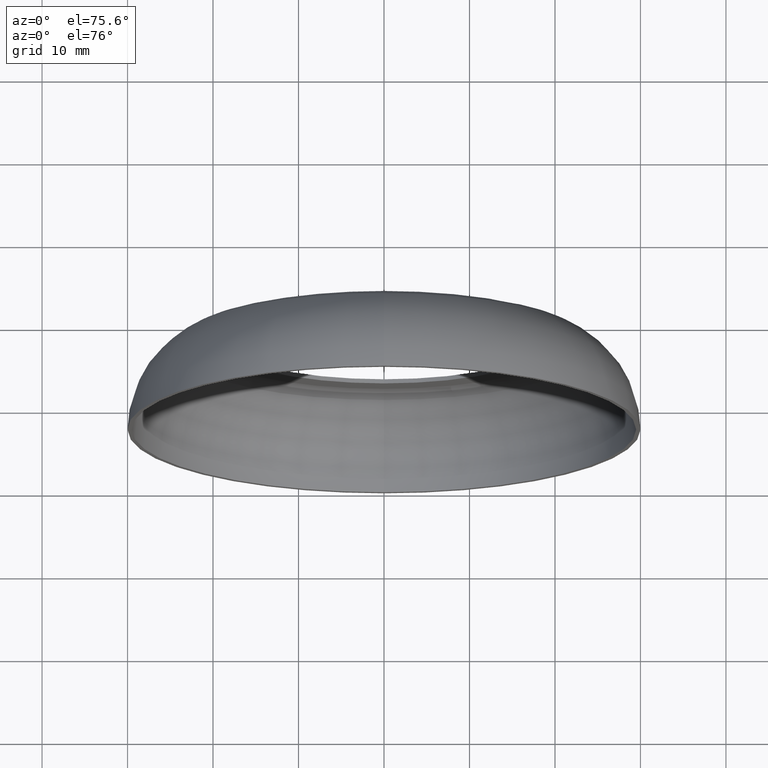
[diagram: clean part render]
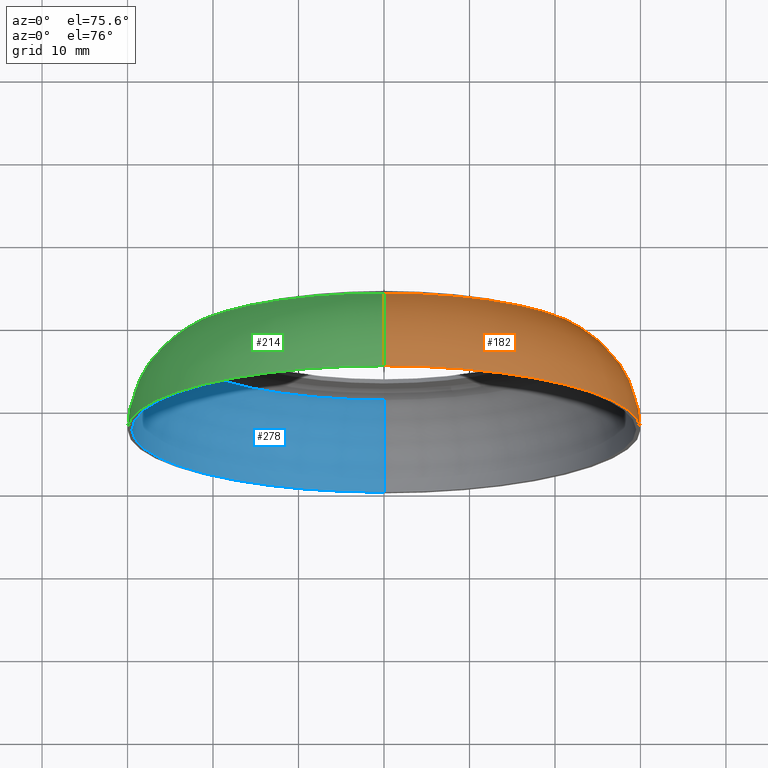
[diagram: same view with three faces highlighted in distinct colors, each labeled with its STEP entity id]
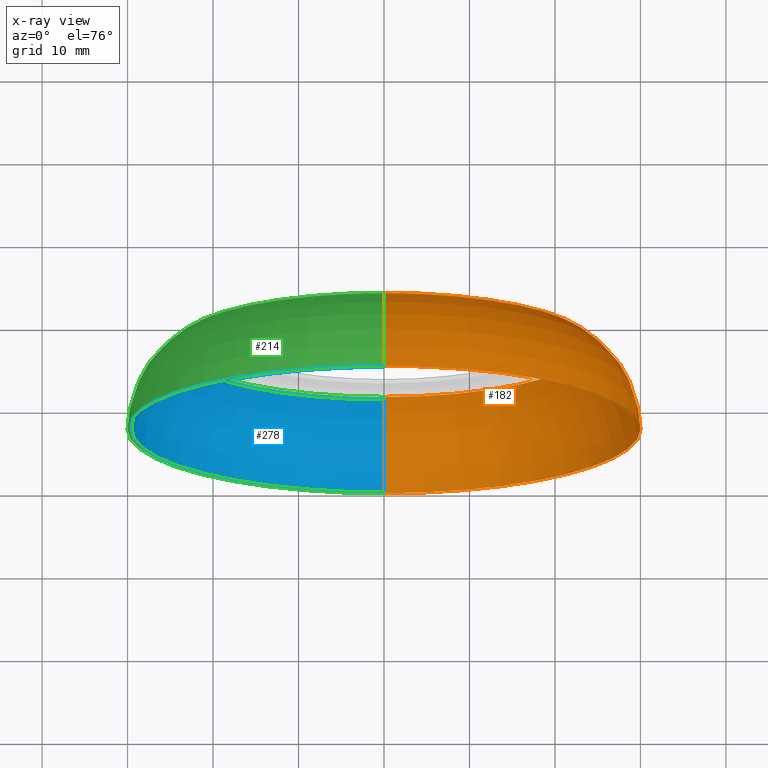
[diagram: x-ray of the same camera — body ghosted, the three highlighted faces saturated]
A machine part, auxiliary view with three faces highlighted in distinct colors.
The next image is the same camera in x-ray (body ghosted, the three faces saturated) — at least one of them is partly hidden behind the body in this view.
Their STEP definitions:

[orange] entity #182 — the highlighted toroidal blend (fillet) surface has major radius 17.8571 mm and minor (blend) radius 12.1429 mm.
#6 = CIRCLE ( 'NONE', #294, 12.14285714285714200 ) ;
#11 = CARTESIAN_POINT ( 'NONE',  ( 0.0000000000000000000, 0.0000000000000000000, -17.85714285714285800 ) ) ;
#31 = VERTEX_POINT ( 'NONE', #147 ) ;
#51 = DIRECTION ( 'NONE',  ( 1.000000000000000000, 0.0000000000000000000, -1.224646799147353200E-016 ) ) ;
#61 = CARTESIAN_POINT ( 'NONE',  ( 0.0000000000000000000, 10.19999999999999800, -24.44569198360740700 ) ) ;
#63 = DIRECTION ( 'NONE',  ( -0.0000000000000000000, -1.000000000000000000, -0.0000000000000000000 ) ) ;
#75 = VERTEX_POINT ( 'NONE', #61 ) ;
#108 = DIRECTION ( 'NONE',  ( -1.224646799147353200E-016, 0.0000000000000000000, -1.000000000000000000 ) ) ;
#110 = VERTEX_POINT ( 'NONE', #169 ) ;
#123 = CIRCLE ( 'NONE', #150, 30.00000000000000000 ) ;
#146 = ORIENTED_EDGE ( 'NONE', *, *, #385, .T. ) ;
#147 = CARTESIAN_POINT ( 'NONE',  ( 0.0000000000000000000, 0.0000000000000000000, -30.00000000000000000 ) ) ;
#150 = AXIS2_PLACEMENT_3D ( 'NONE', #235, #355, #207 ) ;
#161 = ORIENTED_EDGE ( 'NONE', *, *, #300, .F. ) ;
#169 = CARTESIAN_POINT ( 'NONE',  ( 3.673940397442059200E-015, 0.0000000000000000000, 30.00000000000000000 ) ) ;
#170 = DIRECTION ( 'NONE',  ( 0.0000000000000000000, 0.0000000000000000000, 1.000000000000000000 ) ) ;
#172 = EDGE_LOOP ( 'NONE', ( #361, #146, #399, #161 ) ) ;
#182 = ADVANCED_FACE ( 'NONE', ( #335 ), #341, .T. ) ;
#184 = CARTESIAN_POINT ( 'NONE',  ( 0.0000000000000000000, 0.0000000000000000000, 0.0000000000000000000 ) ) ;
#188 = CIRCLE ( 'NONE', #333, 24.44569198360740700 ) ;
#195 = CIRCLE ( 'NONE', #375, 12.14285714285714200 ) ;
#198 = EDGE_CURVE ( 'NONE', #75, #315, #188, .T. ) ;
#207 = DIRECTION ( 'NONE',  ( 0.0000000000000000000, 0.0000000000000000000, -1.000000000000000000 ) ) ;
#235 = CARTESIAN_POINT ( 'NONE',  ( 0.0000000000000000000, 0.0000000000000000000, 0.0000000000000000000 ) ) ;
#246 = AXIS2_PLACEMENT_3D ( 'NONE', #184, #63, #316 ) ;
#258 = DIRECTION ( 'NONE',  ( -1.000000000000000000, 0.0000000000000000000, 0.0000000000000000000 ) ) ;
#283 = CARTESIAN_POINT ( 'NONE',  ( 0.0000000000000000000, 10.19999999999999800, 0.0000000000000000000 ) ) ;
#294 = AXIS2_PLACEMENT_3D ( 'NONE', #11, #258, #170 ) ;
#300 = EDGE_CURVE ( 'NONE', #75, #31, #6, .T. ) ;
#305 = EDGE_CURVE ( 'NONE', #31, #110, #123, .T. ) ;
#315 = VERTEX_POINT ( 'NONE', #393 ) ;
#316 = DIRECTION ( 'NONE',  ( 0.0000000000000000000, 0.0000000000000000000, -1.000000000000000000 ) ) ;
#325 = DIRECTION ( 'NONE',  ( -0.0000000000000000000, -1.000000000000000000, -0.0000000000000000000 ) ) ;
#333 = AXIS2_PLACEMENT_3D ( 'NONE', #283, #325, #348 ) ;
#335 = FACE_OUTER_BOUND ( 'NONE', #172, .T. ) ;
#341 = TOROIDAL_SURFACE ( 'NONE', #246, 17.85714285714285800, 12.14285714285714200 ) ;
#348 = DIRECTION ( 'NONE',  ( 0.0000000000000000000, 0.0000000000000000000, -1.000000000000000000 ) ) ;
#351 = CARTESIAN_POINT ( 'NONE',  ( 2.186869284191702100E-015, 0.0000000000000000000, 17.85714285714285800 ) ) ;
#355 = DIRECTION ( 'NONE',  ( -0.0000000000000000000, -1.000000000000000000, -0.0000000000000000000 ) ) ;
#361 = ORIENTED_EDGE ( 'NONE', *, *, #198, .T. ) ;
#375 = AXIS2_PLACEMENT_3D ( 'NONE', #351, #51, #108 ) ;
#385 = EDGE_CURVE ( 'NONE', #315, #110, #195, .T. ) ;
#393 = CARTESIAN_POINT ( 'NONE',  ( 2.993733844066692300E-015, 10.19999999999999800, 24.44569198360740700 ) ) ;
#399 = ORIENTED_EDGE ( 'NONE', *, *, #305, .F. ) ;

[blue] entity #278 — the highlighted toroidal blend (fillet) surface has major radius 17.8571 mm and minor (blend) radius 11.6429 mm.
#18 = CIRCLE ( 'NONE', #26, 29.50000000000000000 ) ;
#26 = AXIS2_PLACEMENT_3D ( 'NONE', #352, #332, #394 ) ;
#42 = DIRECTION ( 'NONE',  ( -0.0000000000000000000, -1.000000000000000000, -0.0000000000000000000 ) ) ;
#43 = CARTESIAN_POINT ( 'NONE',  ( 0.0000000000000000000, 0.0000000000000000000, 0.0000000000000000000 ) ) ;
#48 = EDGE_CURVE ( 'NONE', #120, #199, #216, .T. ) ;
#70 = CARTESIAN_POINT ( 'NONE',  ( 0.0000000000000000000, 9.779999999999997600, 0.0000000000000000000 ) ) ;
#80 = DIRECTION ( 'NONE',  ( -1.224646799147353200E-016, 0.0000000000000000000, -1.000000000000000000 ) ) ;
#84 = TOROIDAL_SURFACE ( 'NONE', #131, 17.85714285714285800, 11.64285714285714200 ) ;
#95 = EDGE_CURVE ( 'NONE', #226, #199, #18, .T. ) ;
#104 = CIRCLE ( 'NONE', #326, 11.64285714285714200 ) ;
#112 = EDGE_LOOP ( 'NONE', ( #356, #306, #208, #292 ) ) ;
#120 = VERTEX_POINT ( 'NONE', #392 ) ;
#131 = AXIS2_PLACEMENT_3D ( 'NONE', #43, #42, #322 ) ;
#133 = VERTEX_POINT ( 'NONE', #236 ) ;
#151 = DIRECTION ( 'NONE',  ( 0.0000000000000000000, 0.0000000000000000000, -1.000000000000000000 ) ) ;
#155 = AXIS2_PLACEMENT_3D ( 'NONE', #370, #317, #374 ) ;
#197 = CARTESIAN_POINT ( 'NONE',  ( 3.612708057484691600E-015, 0.0000000000000000000, 29.50000000000000000 ) ) ;
#199 = VERTEX_POINT ( 'NONE', #384 ) ;
#208 = ORIENTED_EDGE ( 'NONE', *, *, #95, .T. ) ;
#212 = FACE_OUTER_BOUND ( 'NONE', #112, .T. ) ;
#216 = CIRCLE ( 'NONE', #155, 11.64285714285714200 ) ;
#222 = EDGE_CURVE ( 'NONE', #133, #120, #390, .T. ) ;
#226 = VERTEX_POINT ( 'NONE', #197 ) ;
#236 = CARTESIAN_POINT ( 'NONE',  ( 2.960510009248309900E-015, 9.779999999999997600, 24.17439878428239600 ) ) ;
#268 = DIRECTION ( 'NONE',  ( 1.000000000000000000, 0.0000000000000000000, -1.224646799147353200E-016 ) ) ;
#278 = ADVANCED_FACE ( 'NONE', ( #212 ), #84, .F. ) ;
#292 = ORIENTED_EDGE ( 'NONE', *, *, #48, .F. ) ;
#297 = CARTESIAN_POINT ( 'NONE',  ( 2.186869284191702100E-015, 0.0000000000000000000, 17.85714285714285800 ) ) ;
#306 = ORIENTED_EDGE ( 'NONE', *, *, #358, .T. ) ;
#317 = DIRECTION ( 'NONE',  ( -1.000000000000000000, 0.0000000000000000000, 0.0000000000000000000 ) ) ;
#322 = DIRECTION ( 'NONE',  ( 0.0000000000000000000, 0.0000000000000000000, -1.000000000000000000 ) ) ;
#326 = AXIS2_PLACEMENT_3D ( 'NONE', #297, #268, #80 ) ;
#332 = DIRECTION ( 'NONE',  ( -0.0000000000000000000, -1.000000000000000000, -0.0000000000000000000 ) ) ;
#336 = AXIS2_PLACEMENT_3D ( 'NONE', #70, #379, #151 ) ;
#352 = CARTESIAN_POINT ( 'NONE',  ( 0.0000000000000000000, 0.0000000000000000000, 0.0000000000000000000 ) ) ;
#356 = ORIENTED_EDGE ( 'NONE', *, *, #222, .F. ) ;
#358 = EDGE_CURVE ( 'NONE', #133, #226, #104, .T. ) ;
#370 = CARTESIAN_POINT ( 'NONE',  ( 0.0000000000000000000, 0.0000000000000000000, -17.85714285714285800 ) ) ;
#374 = DIRECTION ( 'NONE',  ( 0.0000000000000000000, 0.0000000000000000000, 1.000000000000000000 ) ) ;
#379 = DIRECTION ( 'NONE',  ( -0.0000000000000000000, -1.000000000000000000, -0.0000000000000000000 ) ) ;
#384 = CARTESIAN_POINT ( 'NONE',  ( 0.0000000000000000000, 0.0000000000000000000, -29.50000000000000000 ) ) ;
#390 = CIRCLE ( 'NONE', #336, 24.17439878428239600 ) ;
#392 = CARTESIAN_POINT ( 'NONE',  ( 0.0000000000000000000, 9.779999999999997600, -24.17439878428239600 ) ) ;
#394 = DIRECTION ( 'NONE',  ( 0.0000000000000000000, 0.0000000000000000000, -1.000000000000000000 ) ) ;

[green] entity #214 — the highlighted toroidal blend (fillet) surface has major radius 17.8571 mm and minor (blend) radius 12.1429 mm.
#6 = CIRCLE ( 'NONE', #294, 12.14285714285714200 ) ;
#8 = CIRCLE ( 'NONE', #284, 24.44569198360740700 ) ;
#11 = CARTESIAN_POINT ( 'NONE',  ( 0.0000000000000000000, 0.0000000000000000000, -17.85714285714285800 ) ) ;
#21 = DIRECTION ( 'NONE',  ( 0.0000000000000000000, 0.0000000000000000000, -1.000000000000000000 ) ) ;
#29 = AXIS2_PLACEMENT_3D ( 'NONE', #65, #321, #126 ) ;
#31 = VERTEX_POINT ( 'NONE', #147 ) ;
#51 = DIRECTION ( 'NONE',  ( 1.000000000000000000, 0.0000000000000000000, -1.224646799147353200E-016 ) ) ;
#52 = ORIENTED_EDGE ( 'NONE', *, *, #344, .T. ) ;
#61 = CARTESIAN_POINT ( 'NONE',  ( 0.0000000000000000000, 10.19999999999999800, -24.44569198360740700 ) ) ;
#65 = CARTESIAN_POINT ( 'NONE',  ( 0.0000000000000000000, 0.0000000000000000000, 0.0000000000000000000 ) ) ;
#71 = ORIENTED_EDGE ( 'NONE', *, *, #230, .F. ) ;
#75 = VERTEX_POINT ( 'NONE', #61 ) ;
#105 = CARTESIAN_POINT ( 'NONE',  ( 0.0000000000000000000, 10.19999999999999800, 0.0000000000000000000 ) ) ;
#108 = DIRECTION ( 'NONE',  ( -1.224646799147353200E-016, 0.0000000000000000000, -1.000000000000000000 ) ) ;
#110 = VERTEX_POINT ( 'NONE', #169 ) ;
#114 = CIRCLE ( 'NONE', #29, 30.00000000000000000 ) ;
#126 = DIRECTION ( 'NONE',  ( 0.0000000000000000000, 0.0000000000000000000, -1.000000000000000000 ) ) ;
#147 = CARTESIAN_POINT ( 'NONE',  ( 0.0000000000000000000, 0.0000000000000000000, -30.00000000000000000 ) ) ;
#169 = CARTESIAN_POINT ( 'NONE',  ( 3.673940397442059200E-015, 0.0000000000000000000, 30.00000000000000000 ) ) ;
#170 = DIRECTION ( 'NONE',  ( 0.0000000000000000000, 0.0000000000000000000, 1.000000000000000000 ) ) ;
#195 = CIRCLE ( 'NONE', #375, 12.14285714285714200 ) ;
#214 = ADVANCED_FACE ( 'NONE', ( #227 ), #265, .T. ) ;
#224 = CARTESIAN_POINT ( 'NONE',  ( 0.0000000000000000000, 0.0000000000000000000, 0.0000000000000000000 ) ) ;
#227 = FACE_OUTER_BOUND ( 'NONE', #301, .T. ) ;
#230 = EDGE_CURVE ( 'NONE', #110, #31, #114, .T. ) ;
#258 = DIRECTION ( 'NONE',  ( -1.000000000000000000, 0.0000000000000000000, 0.0000000000000000000 ) ) ;
#262 = DIRECTION ( 'NONE',  ( -0.0000000000000000000, -1.000000000000000000, -0.0000000000000000000 ) ) ;
#265 = TOROIDAL_SURFACE ( 'NONE', #360, 17.85714285714285800, 12.14285714285714200 ) ;
#284 = AXIS2_PLACEMENT_3D ( 'NONE', #105, #262, #383 ) ;
#290 = ORIENTED_EDGE ( 'NONE', *, *, #300, .T. ) ;
#294 = AXIS2_PLACEMENT_3D ( 'NONE', #11, #258, #170 ) ;
#300 = EDGE_CURVE ( 'NONE', #75, #31, #6, .T. ) ;
#301 = EDGE_LOOP ( 'NONE', ( #304, #52, #290, #71 ) ) ;
#304 = ORIENTED_EDGE ( 'NONE', *, *, #385, .F. ) ;
#315 = VERTEX_POINT ( 'NONE', #393 ) ;
#321 = DIRECTION ( 'NONE',  ( -0.0000000000000000000, -1.000000000000000000, -0.0000000000000000000 ) ) ;
#344 = EDGE_CURVE ( 'NONE', #315, #75, #8, .T. ) ;
#351 = CARTESIAN_POINT ( 'NONE',  ( 2.186869284191702100E-015, 0.0000000000000000000, 17.85714285714285800 ) ) ;
#360 = AXIS2_PLACEMENT_3D ( 'NONE', #224, #400, #21 ) ;
#375 = AXIS2_PLACEMENT_3D ( 'NONE', #351, #51, #108 ) ;
#383 = DIRECTION ( 'NONE',  ( 0.0000000000000000000, 0.0000000000000000000, -1.000000000000000000 ) ) ;
#385 = EDGE_CURVE ( 'NONE', #315, #110, #195, .T. ) ;
#393 = CARTESIAN_POINT ( 'NONE',  ( 2.993733844066692300E-015, 10.19999999999999800, 24.44569198360740700 ) ) ;
#400 = DIRECTION ( 'NONE',  ( -0.0000000000000000000, -1.000000000000000000, -0.0000000000000000000 ) ) ;